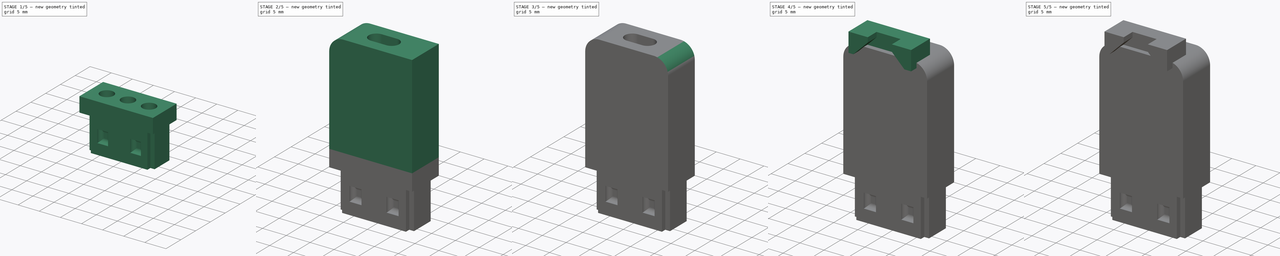
[diagram: build sequence overview — one tinted view per stage of 5, left to right]
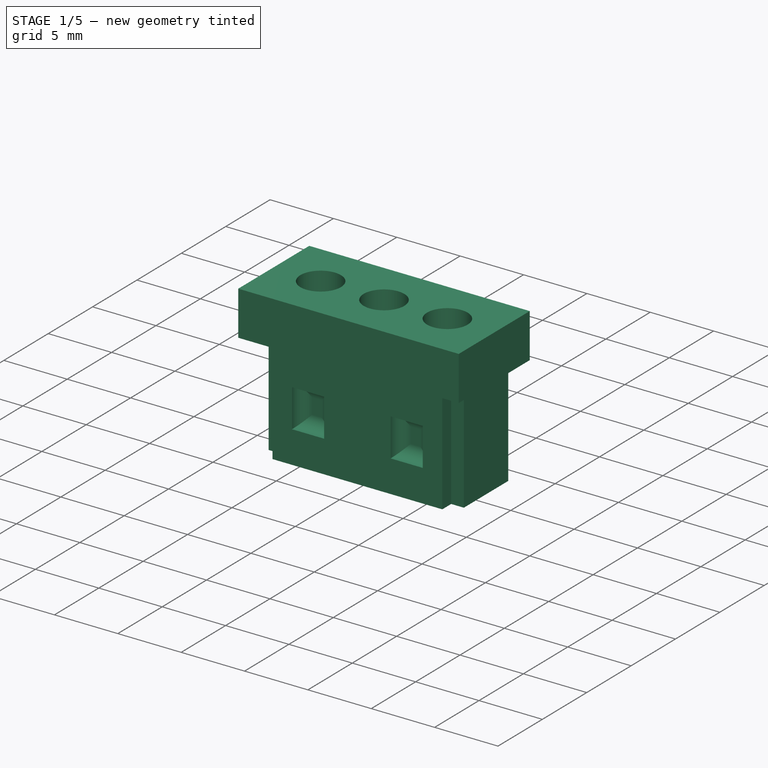
[diagram: stage 1 of 5 — iso view after this stage's code; geometry added in this stage tinted green]
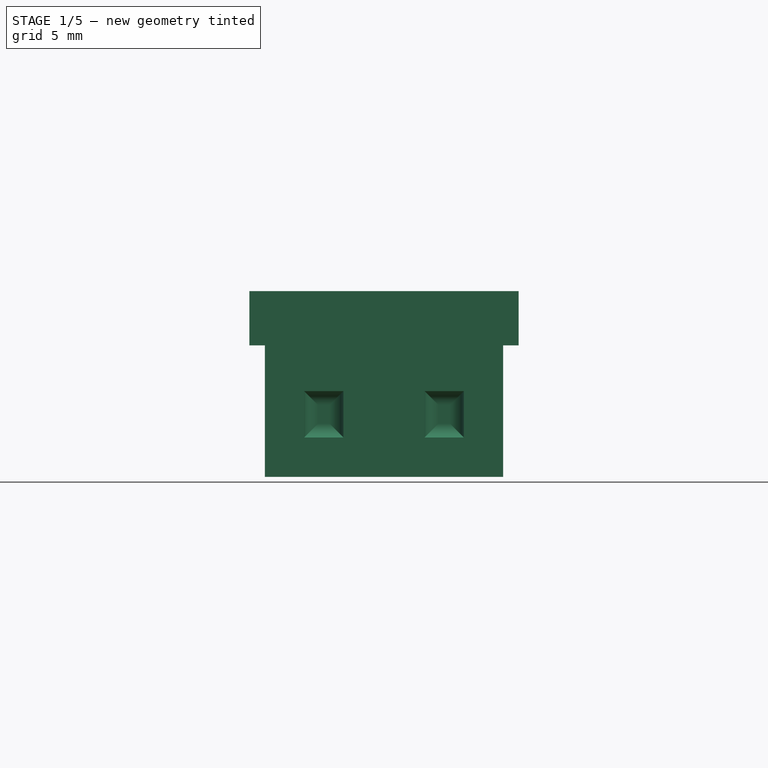
[diagram: stage 1 of 5 — front view after this stage's code; geometry added in this stage tinted green]
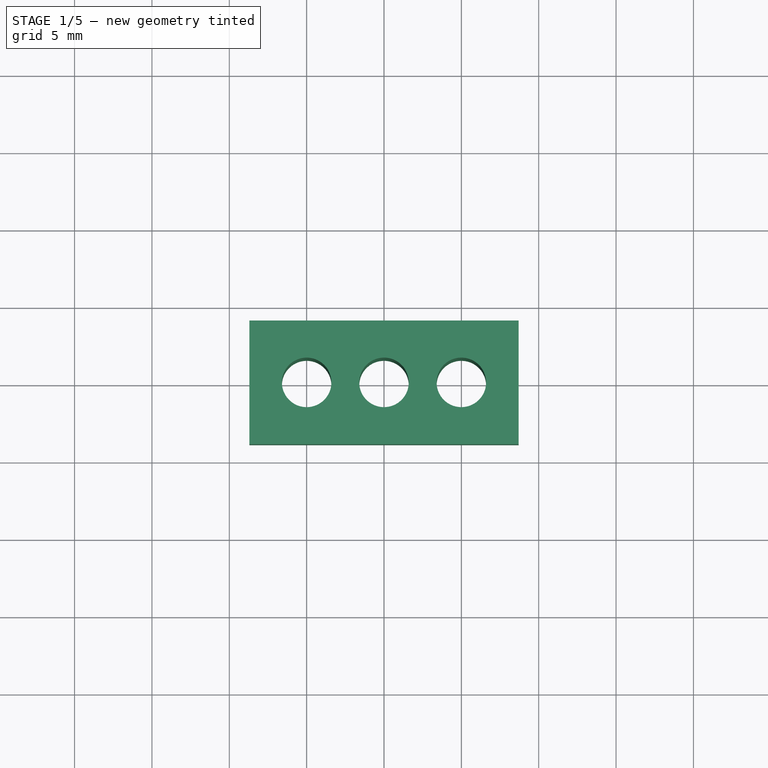
[diagram: stage 1 of 5 — top view after this stage's code; geometry added in this stage tinted green]
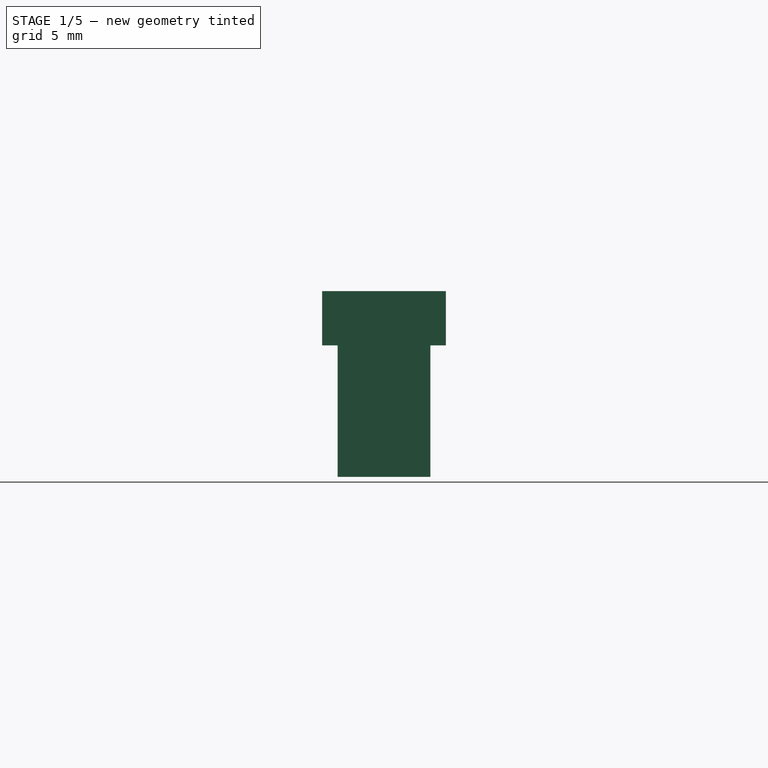
[diagram: stage 1 of 5 — right view after this stage's code; geometry added in this stage tinted green]
FCSTD DOCUMENT  (FreeCAD 0.21R33771 (Git))
Label: IbmPcJrPowerPlug
License: All rights reserved
LicenseURL: http://en.wikipedia.org/wiki/All_rights_reserved
objects: Sketcher::SketchObject×11, PartDesign::Pad×9, PartDesign::Fillet×9, PartDesign::Chamfer×4, PartDesign::Mirrored×3, PartDesign::Pocket×2, PartDesign::Body×2
note: 64 computed .brp shape members not serialized (recipe doc carries the construction recipe); baked Part::Feature solids carry a one-line shape summary decoded from their .brp

FEATURE [Sketcher::SketchObject] Sketch
  FullyConstrained = true
  MapMode = 5
  Support = -> [XY_Plane]
  sketch-geometry (11):
    g0: LineSegment StartX=-7.7 StartY=3 StartZ=0 EndX=7.7 EndY=3 EndZ=0
    g1: LineSegment StartX=7.7 StartY=3 StartZ=0 EndX=7.7 EndY=-2 EndZ=0
    g2: LineSegment StartX=7.7 StartY=-2 StartZ=0 EndX=6.7 EndY=-2 EndZ=0
    g3: LineSegment StartX=6.7 StartY=-2 StartZ=0 EndX=6.7 EndY=-3 EndZ=0
    g4: LineSegment StartX=6.7 StartY=-3 StartZ=0 EndX=-6.7 EndY=-3 EndZ=0
    g5: LineSegment StartX=-6.7 StartY=-3 StartZ=0 EndX=-6.7 EndY=-2 EndZ=0
    g6: LineSegment StartX=-6.7 StartY=-2 StartZ=0 EndX=-7.7 EndY=-2 EndZ=0
    g7: LineSegment StartX=-7.7 StartY=-2 StartZ=0 EndX=-7.7 EndY=3 EndZ=0
    g8: Circle CenterX=0 CenterY=0 CenterZ=0 NormalX=0 NormalY=0 NormalZ=1 AngleXU=0 Radius=1.6
    g9: Circle CenterX=-5 CenterY=0 CenterZ=0 NormalX=0 NormalY=0 NormalZ=1 AngleXU=0 Radius=1.6
    g10: Circle CenterX=5 CenterY=0 CenterZ=0 NormalX=0 NormalY=0 NormalZ=1 AngleXU=0 Radius=1.6
  constraints (32):
    c: Horizontal(g0)
    c: Coincident(g0,g1)
    c: Coincident(g1,g2)
    c: Coincident(g2,g3)
    c: Vertical(g3)
    c: Coincident(g3,g4)
    c: Horizontal(g4)
    c: Coincident(g4,g5)
    c: Coincident(g5,g6)
    c: Coincident(g6,g7)
    c: Coincident(g7,g0)
    c: Vertical(g7)
    c: Horizontal(g6)
    c: Vertical(g5)
    c: Horizontal(g2)
    c: Vertical(g1)
    c: DistanceX(g0,g0) = 15.4
    c: DistanceX(g4,g4) = 13.4
    c: Equal(g6,g2)
    c: DistanceY(g1,g1) = 5
    c: Equal(g5,g3)
    c: DistanceY(g5,g5) = 1
    c: DistanceX(g0,g-1) = 7.7
    c: DistanceY(g-1,g0) = 3
    c: Coincident(g8,g-1)
    c: Diameter(g8) = 3.2
    c: Horizontal(g9,g8)
    c: Equal(g9,g8)
    c: DistanceX(g9,g-1) = 5
    c: Horizontal(g10,g8)
    c: Equal(g8,g10)
    c: DistanceX(g-1,g10) = 5
FEATURE [PartDesign::Pad] Pad
  Direction = (0,0,1)
  Length = 8.5
  Length2 = 10
  Profile = -> Sketch
  ReferenceAxis = -> Sketch [N_Axis]
  Type = 0
  expr: Length = 8.5 mm
FEATURE [Sketcher::SketchObject] Sketch001
  ExternalGeometry = -> [Pad]
  FullyConstrained = true
  MapMode = 5
  Placement = pos=(0,3,0) rot=(0,0.707107,0.707107;3.14159rad)
  Support = -> [Pad]
  sketch-geometry (8):
    g0: LineSegment StartX=-5.16 StartY=5.54 StartZ=0 EndX=-2.62 EndY=5.54 EndZ=0
    g1: LineSegment StartX=-2.62 StartY=5.54 StartZ=0 EndX=-2.62 EndY=2.54 EndZ=0
    g2: LineSegment StartX=-2.62 StartY=2.54 StartZ=0 EndX=-5.16 EndY=2.54 EndZ=0
    g3: LineSegment StartX=-5.16 StartY=2.54 StartZ=0 EndX=-5.16 EndY=5.54 EndZ=0
    g4: LineSegment StartX=2.62 StartY=5.54 StartZ=0 EndX=5.16 EndY=5.54 EndZ=0
    g5: LineSegment StartX=5.16 StartY=5.54 StartZ=0 EndX=5.16 EndY=2.54 EndZ=0
    g6: LineSegment StartX=5.16 StartY=2.54 StartZ=0 EndX=2.62 EndY=2.54 EndZ=0
    g7: LineSegment StartX=2.62 StartY=2.54 StartZ=0 EndX=2.62 EndY=5.54 EndZ=0
  constraints (24):
    c: Coincident(g0,g1)
    c: Coincident(g1,g2)
    c: Coincident(g2,g3)
    c: Coincident(g3,g0)
    c: Horizontal(g0)
    c: Horizontal(g2)
    c: Vertical(g1)
    c: Vertical(g3)
    c: DistanceX(g0,g0) = 2.54
    c: DistanceY(g1,g1) = 3
    c: DistanceY(g-4,g1) = 2.54
    c: DistanceX(g-4,g2) = 2.54
    c: Coincident(g4,g5)
    c: Coincident(g5,g6)
    c: Coincident(g6,g7)
    c: Coincident(g7,g4)
    c: Horizontal(g4)
    c: Horizontal(g6)
    c: Vertical(g5)
    c: Vertical(g7)
    c: DistanceY(g-1,g6) = 2.54
    c: DistanceX(g4,g-3) = 2.54
    c: Equal(g0,g4)
    c: Equal(g5,g1)
FEATURE [PartDesign::Pocket] Pocket
  BaseFeature = -> Pad
  Direction = (0,-1,2e-16)
  Length = 1
  Length2 = 5
  Profile = -> Sketch001
  ReferenceAxis = -> Sketch001 [N_Axis]
  Type = 0
FEATURE [PartDesign::Mirrored] Mirrored
  BaseFeature = -> Pocket
  MirrorPlane = -> XZ_Plane
  Originals = -> [Pocket]
FEATURE [PartDesign::Fillet] Fillet
  Base = -> Mirrored [Face33,Face32,Face23,Face22]
  BaseFeature = -> Mirrored
  Radius = 0.9
  SupportTransform = false
  UseAllEdges = false
FEATURE [Sketcher::SketchObject] Sketch002
  ExternalGeometry = -> [Fillet]
  FullyConstrained = true
  MapMode = 5
  Placement = pos=(0,0,8.5) rot=(0,0,1;0rad)
  Support = -> [Fillet]
  sketch-geometry (7):
    g0: LineSegment StartX=-8.7 StartY=4 StartZ=0 EndX=8.7 EndY=4 EndZ=0
    g1: LineSegment StartX=8.7 StartY=4 StartZ=0 EndX=8.7 EndY=-4 EndZ=0
    g2: LineSegment StartX=8.7 StartY=-4 StartZ=0 EndX=-8.7 EndY=-4 EndZ=0
    g3: LineSegment StartX=-8.7 StartY=-4 StartZ=0 EndX=-8.7 EndY=4 EndZ=0
    g4: Circle CenterX=0 CenterY=0 CenterZ=0 NormalX=0 NormalY=0 NormalZ=1 AngleXU=0 Radius=1.6
    g5: Circle CenterX=-5 CenterY=0 CenterZ=0 NormalX=0 NormalY=0 NormalZ=1 AngleXU=0 Radius=1.6
    g6: Circle CenterX=5 CenterY=0 CenterZ=0 NormalX=0 NormalY=0 NormalZ=1 AngleXU=0 Radius=1.6
  constraints (20):
    c: Coincident(g0,g1)
    c: Coincident(g1,g2)
    c: Coincident(g2,g3)
    c: Coincident(g3,g0)
    c: Horizontal(g0)
    c: Horizontal(g2)
    c: Vertical(g1)
    c: Vertical(g3)
    c: DistanceX(g-6,g1) = 1
    c: DistanceX(g0,g-5) = 1
    c: DistanceY(g2,g-3) = 1
    c: DistanceY(g-6,g0) = 1
    c: Coincident(g4,g-1)
    c: Diameter(g4) = 3.2
    c: Horizontal(g4,g5)
    c: DistanceX(g5,g4) = 5
    c: Equal(g4,g5)
    c: DistanceX(g4,g6) = 5
    c: Horizontal(g4,g6)
    c: Equal(g4,g6)
FEATURE [PartDesign::Pad] Pad001
  BaseFeature = -> Fillet
  Direction = (0,0,1)
  Length = 3.5
  Length2 = 10
  Profile = -> Sketch002
  ReferenceAxis = -> Sketch002 [N_Axis]
  Type = 0
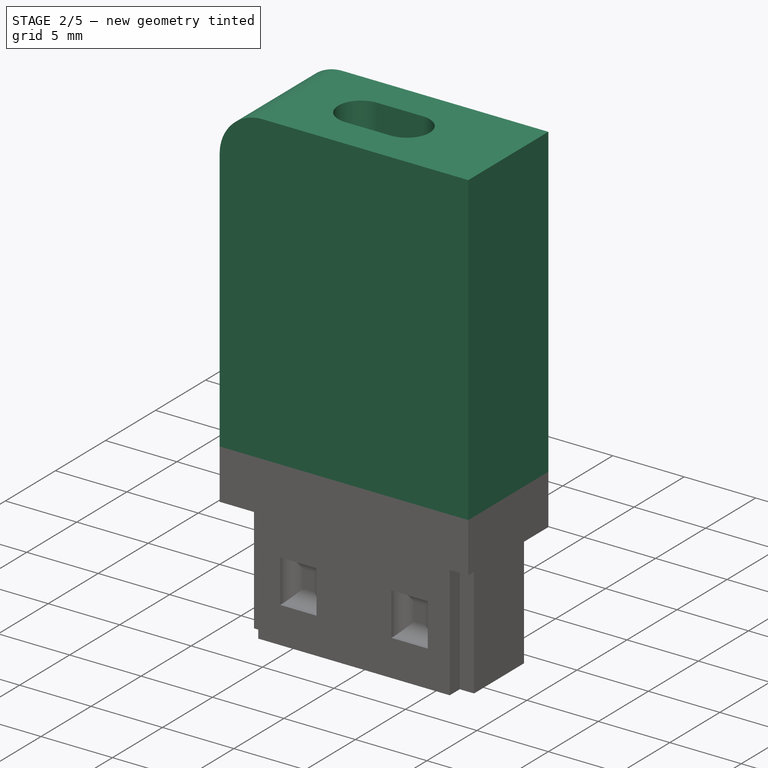
[diagram: stage 2 of 5 — iso view after this stage's code; geometry added in this stage tinted green]
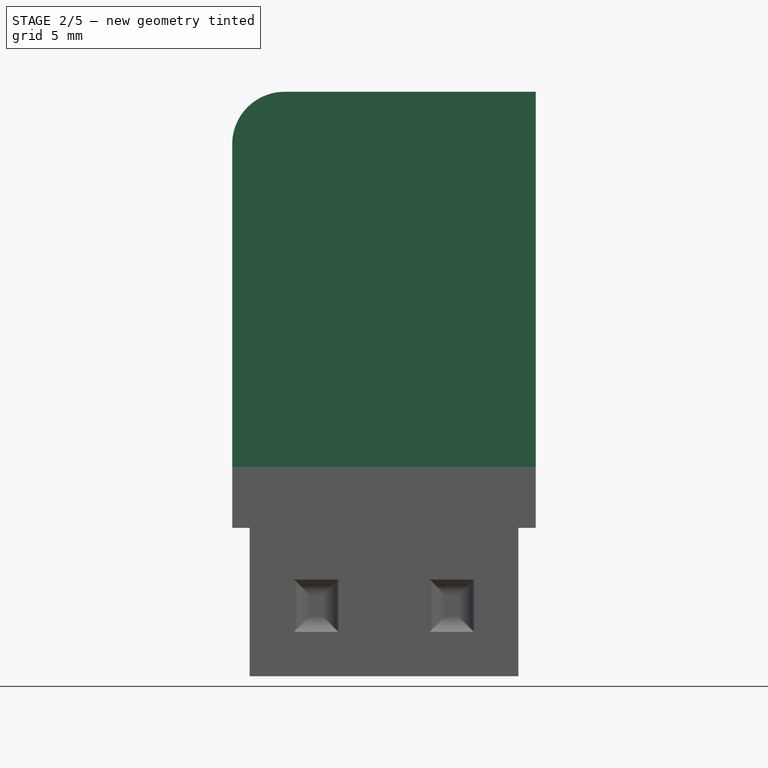
[diagram: stage 2 of 5 — front view after this stage's code; geometry added in this stage tinted green]
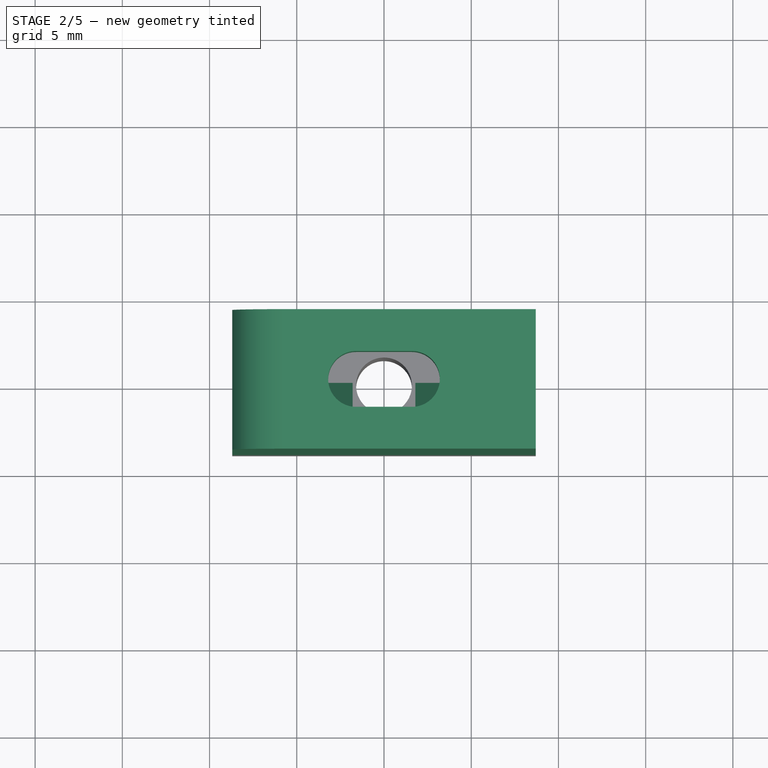
[diagram: stage 2 of 5 — top view after this stage's code; geometry added in this stage tinted green]
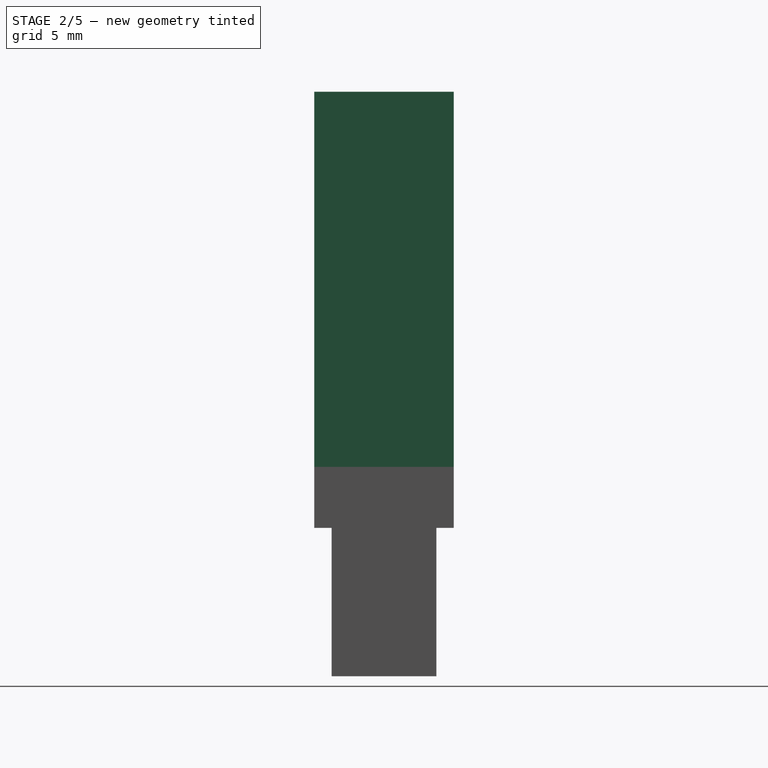
[diagram: stage 2 of 5 — right view after this stage's code; geometry added in this stage tinted green]
FEATURE [Sketcher::SketchObject] Sketch003
  ExternalGeometry = -> [Pad001]
  FullyConstrained = true
  MapMode = 5
  Placement = pos=(0,0,12) rot=(0,0,1;0rad)
  Support = -> [Pad001]
  sketch-geometry (16):
    g0: LineSegment StartX=-8.7 StartY=4 StartZ=0 EndX=-8.7 EndY=-4 EndZ=0
    g1: LineSegment StartX=8.7 StartY=-4 StartZ=0 EndX=8.7 EndY=4 EndZ=0
    g2: LineSegment StartX=-8.7 StartY=-4 StartZ=0 EndX=8.7 EndY=-4 EndZ=0
    g3: LineSegment StartX=-6.8 StartY=-1.6 StartZ=0 EndX=-3.2 EndY=-1.6 EndZ=0
    g4: LineSegment StartX=-6.8 StartY=-1.6 StartZ=0 EndX=-6.8 EndY=4 EndZ=0
    g5: LineSegment StartX=-8.7 StartY=4 StartZ=0 EndX=-6.8 EndY=4 EndZ=0
    g6: LineSegment StartX=-3.2 StartY=-1.6 StartZ=0 EndX=-3.2 EndY=7e-16 EndZ=0
    g7: LineSegment StartX=8.7 StartY=4 StartZ=0 EndX=6.8 EndY=4 EndZ=0
    g8: LineSegment StartX=6.8 StartY=4 StartZ=0 EndX=6.8 EndY=-1.6 EndZ=0
    g9: LineSegment StartX=3.2 StartY=-1.6 StartZ=0 EndX=6.8 EndY=-1.6 EndZ=0
    g10: LineSegment StartX=3.2 StartY=-1.6 StartZ=0 EndX=3.2 EndY=0 EndZ=0
    g11: LineSegment StartX=-3.2 StartY=7e-16 StartZ=0 EndX=-1.8 EndY=7e-16 EndZ=0
    g12: LineSegment StartX=-1.8 StartY=7e-16 StartZ=0 EndX=-1.8 EndY=-1.6 EndZ=0
    g13: LineSegment StartX=-1.8 StartY=-1.6 StartZ=0 EndX=1.8 EndY=-1.6 EndZ=0
    g14: LineSegment StartX=1.8 StartY=-1.6 StartZ=0 EndX=1.8 EndY=0 EndZ=0
    g15: LineSegment StartX=1.8 StartY=0 StartZ=0 EndX=3.2 EndY=0 EndZ=0
  constraints (44):
    c: Coincident(g0,g-4)
    c: Coincident(g0,g-5)
    c: Coincident(g1,g-6)
    c: Coincident(g1,g-6)
    c: Coincident(g2,g0)
    c: Coincident(g2,g1)
    c: Horizontal(g3)
    c: DistanceX(g3,g3) = 3.6
    c: Coincident(g4,g3)
    c: Vertical(g4)
    c: Coincident(g5,g0)
    c: Coincident(g5,g4)
    c: Horizontal(g5)
    c: DistanceX(g5,g5) = 1.9
    c: DistanceY(g4,g4) = 5.6
    c: Coincident(g6,g3)
    c: Vertical(g6)
    c: DistanceY(g6,g6) = 1.6
    c: Coincident(g7,g1)
    c: Horizontal(g7)
    c: Equal(g7,g5)
    c: Coincident(g8,g7)
    c: Vertical(g8)
    c: Horizontal(g9)
    c: Coincident(g8,g9)
    c: Equal(g8,g4)
    c: Equal(g9,g3)
    c: Coincident(g10,g9)
    c: PointOnObject(g10,g-1)
    c: Vertical(g10)
    c: Coincident(g11,g6)
    c: Horizontal(g11)
    c: Coincident(g12,g11)
    c: Vertical(g12)
    c: Coincident(g13,g12)
    c: Horizontal(g13)
    c: Equal(g13,g3)
    c: Equal(g12,g6)
    c: DistanceX(g11,g11) = 1.4
    c: Coincident(g14,g13)
    c: PointOnObject(g14,g-1)
    c: Vertical(g14)
    c: Coincident(g15,g14)
    c: Coincident(g15,g10)
FEATURE [PartDesign::Pad] Pad002
  BaseFeature = -> Pad001
  Direction = (0,0,1)
  Length = 10
  Length2 = 10
  Profile = -> Sketch003
  ReferenceAxis = -> Sketch003 [N_Axis]
  Type = 0
FEATURE [Sketcher::SketchObject] Sketch004
  ExternalGeometry = -> [Pad002]
  FullyConstrained = true
  MapMode = 5
  Placement = pos=(0,0,22) rot=(0,0,1;0rad)
  Support = -> [Pad002]
  sketch-geometry (8):
    g0: LineSegment StartX=-8.7 StartY=4 StartZ=0 EndX=-8.7 EndY=-4 EndZ=0
    g1: LineSegment StartX=8.7 StartY=-4 StartZ=0 EndX=-8.7 EndY=-4 EndZ=0
    g2: LineSegment StartX=8.7 StartY=4 StartZ=0 EndX=8.7 EndY=-4 EndZ=0
    g3: LineSegment StartX=-8.7 StartY=4 StartZ=0 EndX=-6.8 EndY=4 EndZ=0
    g4: LineSegment StartX=8.7 StartY=4 StartZ=0 EndX=6.8 EndY=4 EndZ=0
    g5: LineSegment StartX=-6.8 StartY=4 StartZ=0 EndX=-6.8 EndY=-1.6 EndZ=0
    g6: LineSegment StartX=6.8 StartY=4 StartZ=0 EndX=6.8 EndY=-1.6 EndZ=0
    g7: LineSegment StartX=-6.8 StartY=-1.6 StartZ=0 EndX=6.8 EndY=-1.6 EndZ=0
  constraints (18):
    c: Coincident(g0,g-3)
    c: Coincident(g0,g-4)
    c: Coincident(g1,g-6)
    c: Coincident(g1,g0)
    c: Coincident(g2,g-6)
    c: Coincident(g2,g1)
    c: Coincident(g3,g0)
    c: Coincident(g3,g-5)
    c: Coincident(g4,g2)
    c: Coincident(g4,g-5)
    c: Coincident(g5,g3)
    c: Vertical(g5)
    c: DistanceY(g5,g5) = 5.6
    c: Coincident(g6,g4)
    c: Vertical(g6)
    c: Equal(g6,g5)
    c: Coincident(g7,g5)
    c: Coincident(g7,g6)
FEATURE [PartDesign::Pad] Pad003
  BaseFeature = -> Pad002
  Direction = (0,0,1)
  Length = 8
  Length2 = 10
  Profile = -> Sketch004
  ReferenceAxis = -> Sketch004 [N_Axis]
  Type = 0
FEATURE [Sketcher::SketchObject] Sketch005
  ExternalGeometry = -> [Pad003]
  FullyConstrained = true
  MapMode = 5
  Placement = pos=(0,0,30) rot=(0,0,1;0rad)
  Support = -> [Pad003]
  sketch-geometry (8):
    g0: LineSegment StartX=-8.7 StartY=4 StartZ=0 EndX=8.7 EndY=4 EndZ=0
    g1: LineSegment StartX=8.7 StartY=4 StartZ=0 EndX=8.7 EndY=-4 EndZ=0
    g2: LineSegment StartX=8.7 StartY=-4 StartZ=0 EndX=-8.7 EndY=-4 EndZ=0
    g3: LineSegment StartX=-8.7 StartY=-4 StartZ=0 EndX=-8.7 EndY=4 EndZ=0
    g4: ArcOfCircle CenterX=-1.6 CenterY=0 CenterZ=0 NormalX=0 NormalY=0 NormalZ=1 AngleXU=0 Radius=1.6 StartAngle=1.5708 EndAngle=4.71239
    g5: ArcOfCircle CenterX=1.6 CenterY=0 CenterZ=0 NormalX=0 NormalY=0 NormalZ=1 AngleXU=0 Radius=1.6 StartAngle=4.71239 EndAngle=7.85398
    g6: LineSegment StartX=-1.6 StartY=-1.6 StartZ=0 EndX=1.6 EndY=-1.6 EndZ=0
    g7: LineSegment StartX=1.6 StartY=1.6 StartZ=0 EndX=-1.6 EndY=1.6 EndZ=0
  constraints (20):
    c: Coincident(g0,g1)
    c: Coincident(g1,g2)
    c: Coincident(g2,g3)
    c: Coincident(g3,g0)
    c: Horizontal(g0)
    c: Horizontal(g2)
    c: Vertical(g1)
    c: Vertical(g3)
    c: Coincident(g0,g-3)
    c: Coincident(g1,g-4)
    c: Tangent(g4,g6) = -1.5708
    c: Tangent(g6,g5) = -1.5708
    c: Tangent(g5,g7) = -1.5708
    c: Tangent(g7,g4) = -1.5708
    c: Equal(g4,g5)
    c: PointOnObject(g4,g-1)
    c: PointOnObject(g5,g-1)
    c: DistanceX(g-1,g5) = 1.6
    c: DistanceY(g4,g-1) = 1.6
    c: DistanceX(g4,g-1) = 1.6
FEATURE [PartDesign::Pad] Pad004
  BaseFeature = -> Pad003
  Direction = (0,0,1)
  Length = 3.5
  Length2 = 10
  Profile = -> Sketch005
  ReferenceAxis = -> Sketch005 [N_Axis]
  Type = 0
FEATURE [PartDesign::Chamfer] Chamfer
  Angle = 45
  Base = -> Pad004 [Edge182]
  BaseFeature = -> Pad004
  ChamferType = 0
  FlipDirection = false
  Size = 1.5
  Size2 = 1
  SupportTransform = false
  UseAllEdges = false
FEATURE [PartDesign::Chamfer] Chamfer001
  Angle = 45
  Base = -> Chamfer [Edge48]
  BaseFeature = -> Chamfer
  ChamferType = 0
  FlipDirection = false
  Size = 1.5
  Size2 = 1
  SupportTransform = false
  UseAllEdges = false
FEATURE [PartDesign::Fillet] Fillet001
  Base = -> Chamfer001 [Edge156]
  BaseFeature = -> Chamfer001
  Radius = 3
  SupportTransform = false
  UseAllEdges = false
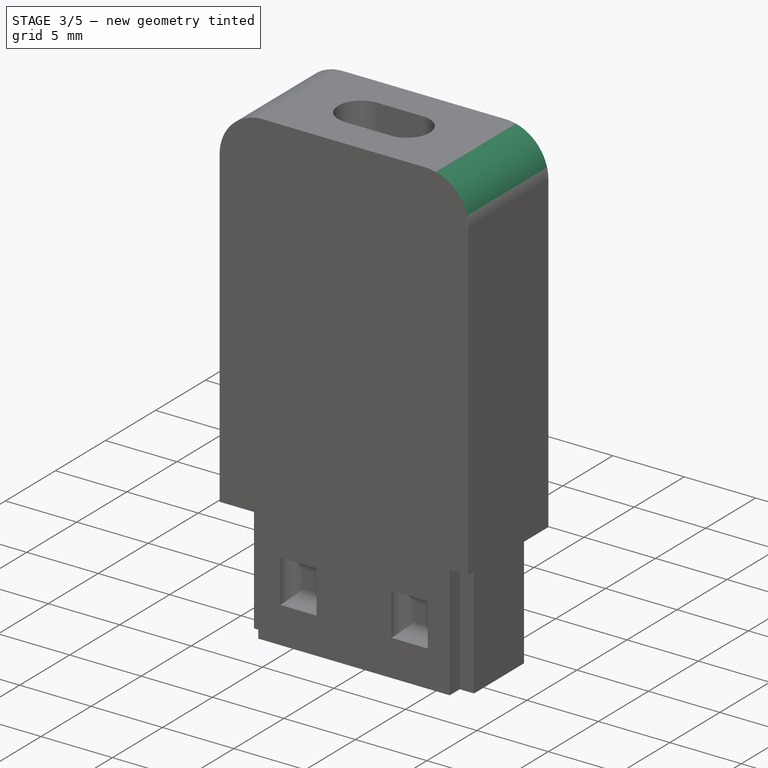
[diagram: stage 3 of 5 — iso view after this stage's code; geometry added in this stage tinted green]
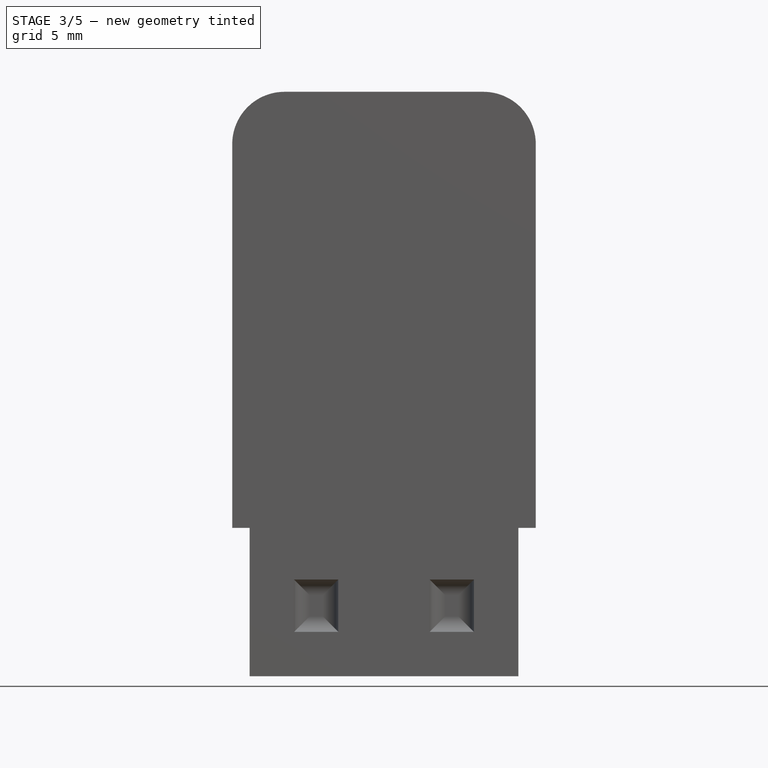
[diagram: stage 3 of 5 — front view after this stage's code; geometry added in this stage tinted green]
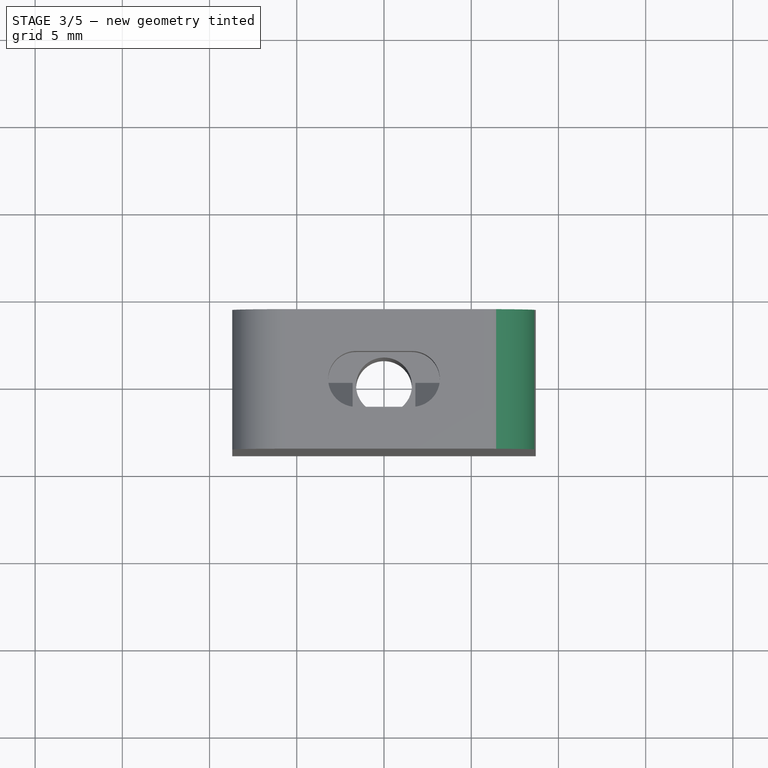
[diagram: stage 3 of 5 — top view after this stage's code; geometry added in this stage tinted green]
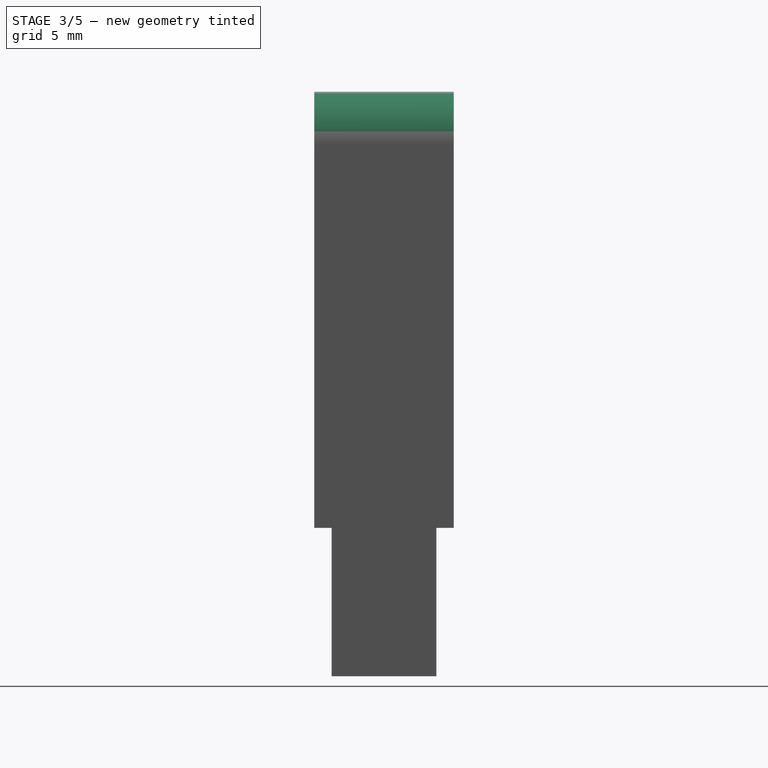
[diagram: stage 3 of 5 — right view after this stage's code; geometry added in this stage tinted green]
FEATURE [PartDesign::Fillet] Fillet002
  Base = -> Fillet001 [Edge16]
  BaseFeature = -> Fillet001
  Radius = 3
  SupportTransform = false
  UseAllEdges = false
FEATURE [PartDesign::Body] Body001  label="PcJrPowerPlugTop"
  Group = -> [Sketch006,Pad005,Sketch007,Pad006,Chamfer002,Chamfer003,Sketch008,Pad007,Sketch009,Pocket001,Mirrored001,Fillet003,Fillet004]
  Origin = -> Origin001
  Placement = pos=(0,32,-8) rot=(0,0,1;0rad)
  Tip = -> Fillet004
FEATURE [Sketcher::SketchObject] Sketch010
  ExternalGeometry = -> [Fillet002]
  FullyConstrained = true
  MapMode = 5
  Placement = pos=(6.8,0,0) rot=(0.57735,-0.57735,-0.57735;2.0944rad)
  Support = -> [Fillet002]
  sketch-geometry (4):
    g0: LineSegment StartX=-3.2 StartY=24 StartZ=0 EndX=-1.8 EndY=24 EndZ=0
    g1: LineSegment StartX=-1.8 StartY=24 StartZ=0 EndX=-1.8 EndY=16 EndZ=0
    g2: LineSegment StartX=-1.8 StartY=16 StartZ=0 EndX=-3.2 EndY=16 EndZ=0
    g3: LineSegment StartX=-3.2 StartY=16 StartZ=0 EndX=-3.2 EndY=24 EndZ=0
  constraints (12):
    c: Coincident(g0,g1)
    c: Coincident(g1,g2)
    c: Coincident(g2,g3)
    c: Coincident(g3,g0)
    c: Horizontal(g0)
    c: Horizontal(g2)
    c: Vertical(g1)
    c: Vertical(g3)
    c: DistanceX(g-4,g2) = 0.8
    c: DistanceX(g0,g0) = 1.4
    c: DistanceY(g1,g1) = 8
    c: DistanceY(g-4,g2) = 4
FEATURE [PartDesign::Pad] Pad008
  BaseFeature = -> Fillet002
  Direction = (-1,0,0)
  Length = 0.8
  Length2 = 10
  Profile = -> Sketch010
  ReferenceAxis = -> Sketch010 [N_Axis]
  Type = 0
FEATURE [PartDesign::Fillet] Fillet005
  Base = -> Pad008 [Edge78]
  BaseFeature = -> Pad008
  Radius = 0.6
  SupportTransform = false
  UseAllEdges = false
FEATURE [PartDesign::Fillet] Fillet006
  Base = -> Fillet005 [Edge25]
  BaseFeature = -> Fillet005
  Radius = 0.6
  SupportTransform = false
  UseAllEdges = false
FEATURE [PartDesign::Mirrored] Mirrored002
  BaseFeature = -> Fillet006
  MirrorPlane = -> YZ_Plane
  Originals = -> [Pad008]
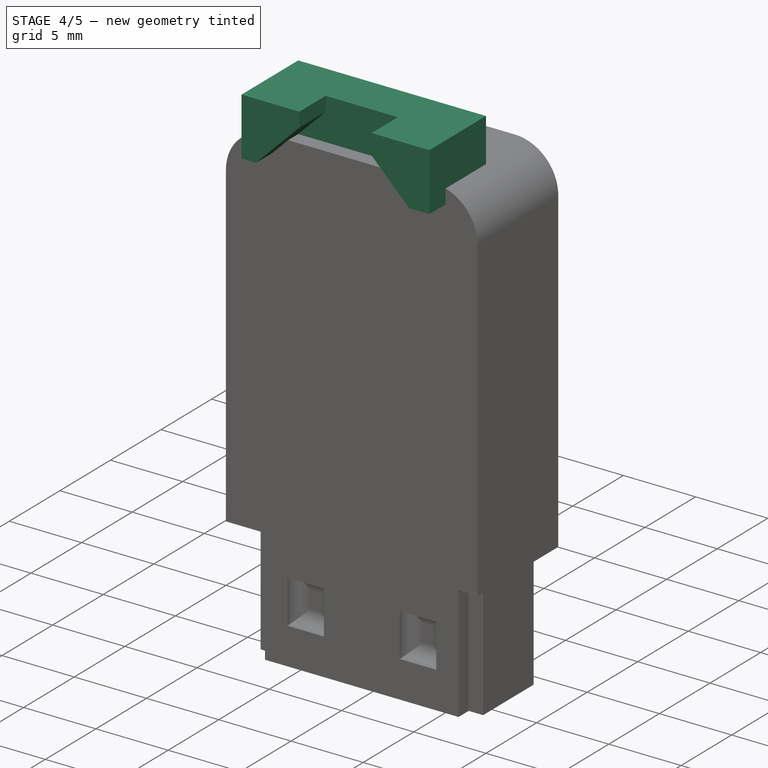
[diagram: stage 4 of 5 — iso view after this stage's code; geometry added in this stage tinted green]
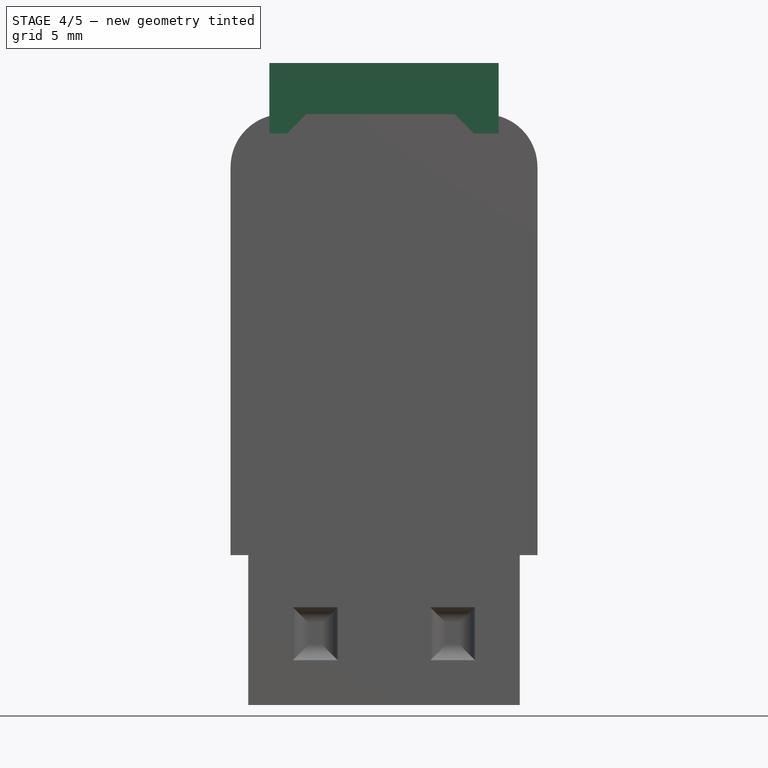
[diagram: stage 4 of 5 — front view after this stage's code; geometry added in this stage tinted green]
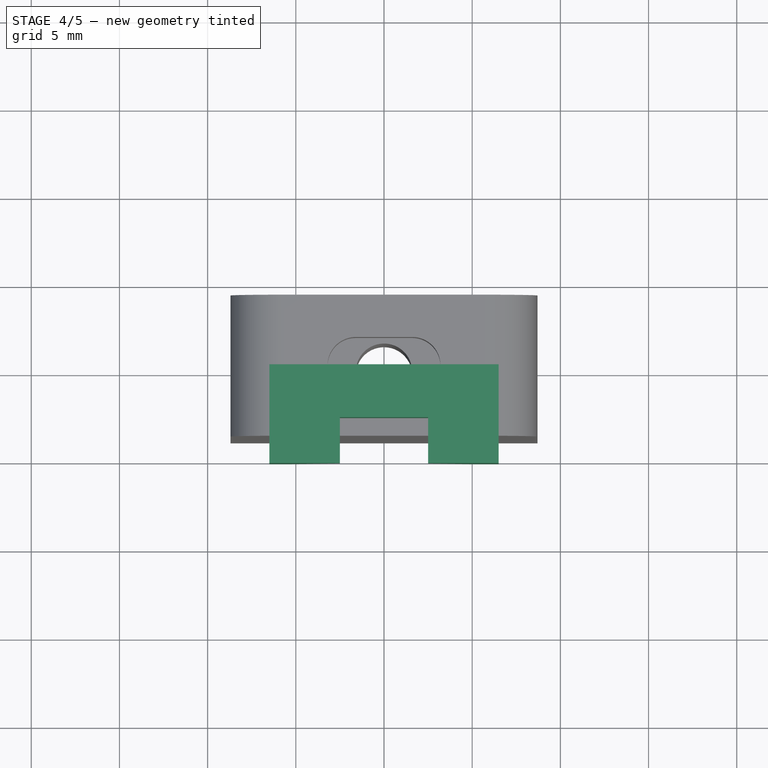
[diagram: stage 4 of 5 — top view after this stage's code; geometry added in this stage tinted green]
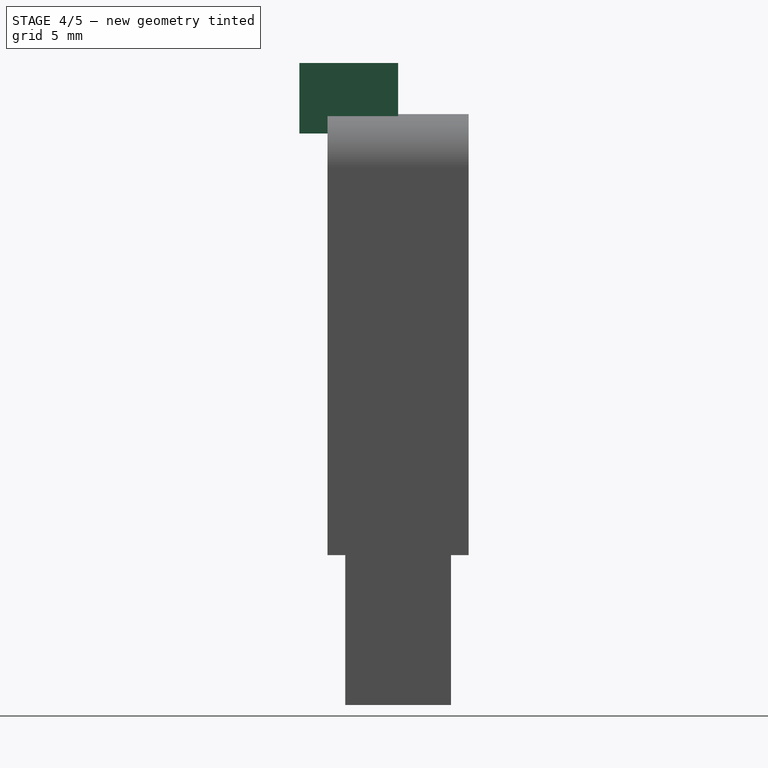
[diagram: stage 4 of 5 — right view after this stage's code; geometry added in this stage tinted green]
FEATURE [Sketcher::SketchObject] Sketch006
  AttachmentOffset = pos=(0,19,0) rot=(0,0,1;0rad)
  FullyConstrained = true
  MapMode = 5
  Placement = pos=(0,-4.2e-15,19) rot=(1,0,0;1.5708rad)
  Support = -> [XZ_Plane001]
  sketch-geometry (4):
    g0: LineSegment StartX=-6.5 StartY=0 StartZ=0 EndX=6.5 EndY=0 EndZ=0
    g1: LineSegment StartX=6.5 StartY=0 StartZ=0 EndX=6.5 EndY=17.4 EndZ=0
    g2: LineSegment StartX=6.5 StartY=17.4 StartZ=0 EndX=-6.5 EndY=17.4 EndZ=0
    g3: LineSegment StartX=-6.5 StartY=17.4 StartZ=0 EndX=-6.5 EndY=0 EndZ=0
  constraints (12):
    c: Coincident(g0,g1)
    c: Coincident(g1,g2)
    c: Coincident(g2,g3)
    c: Coincident(g3,g0)
    c: Horizontal(g0)
    c: Horizontal(g2)
    c: Vertical(g1)
    c: Vertical(g3)
    c: PointOnObject(g0,g-1)
    c: DistanceX(g0,g0) = 13
    c: DistanceY(g3,g3) = 17.4
    c: DistanceX(g0,g-1) = 6.5
FEATURE [PartDesign::Pad] Pad005
  Direction = (0,-1,2e-16)
  Length = 3
  Length2 = 10
  Placement = pos=(0,0,0) rot=(1,0,0;1.5708rad)
  Profile = -> Sketch006
  ReferenceAxis = -> Sketch006 [N_Axis]
  Type = 0
FEATURE [Sketcher::SketchObject] Sketch007
  ExternalGeometry = -> [Pad005]
  FullyConstrained = true
  MapMode = 5
  Placement = pos=(0,-3,1.3e-15) rot=(1,0,0;1.5708rad)
  Support = -> [Pad005]
  sketch-geometry (8):
    g0: LineSegment StartX=-6.5 StartY=36.4 StartZ=0 EndX=-2.5 EndY=36.4 EndZ=0
    g1: LineSegment StartX=-2.5 StartY=36.4 StartZ=0 EndX=-2.5 EndY=32.4 EndZ=0
    g2: LineSegment StartX=-2.5 StartY=32.4 StartZ=0 EndX=-6.5 EndY=32.4 EndZ=0
    g3: LineSegment StartX=-6.5 StartY=32.4 StartZ=0 EndX=-6.5 EndY=36.4 EndZ=0
    g4: LineSegment StartX=6.5 StartY=36.4 StartZ=0 EndX=2.5 EndY=36.4 EndZ=0
    g5: LineSegment StartX=2.5 StartY=36.4 StartZ=0 EndX=2.5 EndY=32.4 EndZ=0
    g6: LineSegment StartX=2.5 StartY=32.4 StartZ=0 EndX=6.5 EndY=32.4 EndZ=0
    g7: LineSegment StartX=6.5 StartY=32.4 StartZ=0 EndX=6.5 EndY=36.4 EndZ=0
  constraints (22):
    c: Coincident(g0,g1)
    c: Coincident(g1,g2)
    c: Coincident(g2,g3)
    c: Coincident(g3,g0)
    c: Horizontal(g0)
    c: Horizontal(g2)
    c: Vertical(g1)
    c: Vertical(g3)
    c: Coincident(g0,g-5)
    c: DistanceY(g1,g1) = 4
    c: DistanceX(g2,g2) = 4
    c: Coincident(g4,g5)
    c: Coincident(g5,g6)
    c: Coincident(g6,g7)
    c: Coincident(g7,g4)
    c: Horizontal(g4)
    c: Horizontal(g6)
    c: Vertical(g5)
    c: Vertical(g7)
    c: Coincident(g4,g-3)
    c: Equal(g4,g0)
    c: Equal(g7,g3)
FEATURE [PartDesign::Pad] Pad006
  BaseFeature = -> Pad005
  Direction = (0,-1,2e-16)
  Length = 2.6
  Length2 = 10
  Placement = pos=(0,0,0) rot=(1,0,0;1.5708rad)
  Profile = -> Sketch007
  ReferenceAxis = -> Sketch007 [N_Axis]
  Type = 0
FEATURE [PartDesign::Chamfer] Chamfer002
  Angle = 45
  Base = -> Pad006 [Edge32]
  BaseFeature = -> Pad006
  ChamferType = 0
  FlipDirection = false
  Placement = pos=(0,0,0) rot=(1,0,0;1.5708rad)
  Size = 3
  Size2 = 1
  SupportTransform = false
  UseAllEdges = false
FEATURE [PartDesign::Chamfer] Chamfer003
  Angle = 45
  Base = -> Chamfer002 [Edge23]
  BaseFeature = -> Chamfer002
  ChamferType = 0
  FlipDirection = false
  Placement = pos=(0,0,0) rot=(1,0,0;1.5708rad)
  Size = 2.6
  Size2 = 1
  SupportTransform = false
  UseAllEdges = false
FEATURE [PartDesign::Fillet] Fillet007
  Base = -> Mirrored002 [Edge146]
  BaseFeature = -> Mirrored002
  Radius = 0.6
  SupportTransform = false
  UseAllEdges = false
FEATURE [PartDesign::Fillet] Fillet008
  Base = -> Fillet007 [Edge25]
  BaseFeature = -> Fillet007
  Radius = 0.6
  SupportTransform = false
  UseAllEdges = false
FEATURE [PartDesign::Body] Body  label="PcJrPowerPlugBottom"
  Group = -> [Sketch,Pad,Sketch001,Pocket,Mirrored,Fillet,Sketch002,Pad001,Sketch003,Pad002,Sketch004,Pad003,Sketch005,Pad004,Chamfer,Chamfer001,Fillet001,Fillet002,Sketch010,Pad008,Fillet005,Fillet006,Mirrored002,Fillet007,Fillet008]
  Origin = -> Origin
  Tip = -> Fillet008
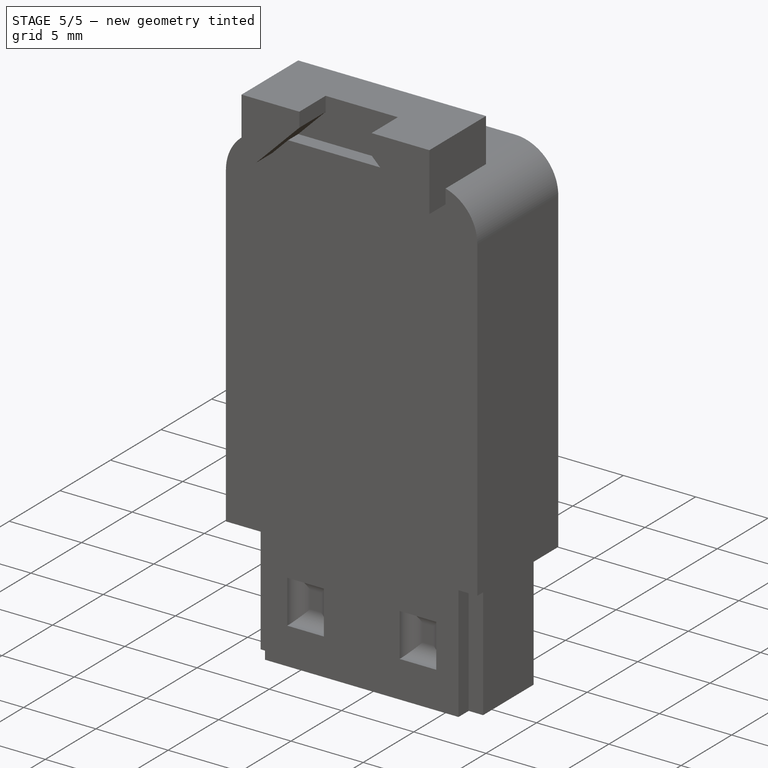
[diagram: stage 5 of 5 — iso view after this stage's code; geometry added in this stage tinted green]
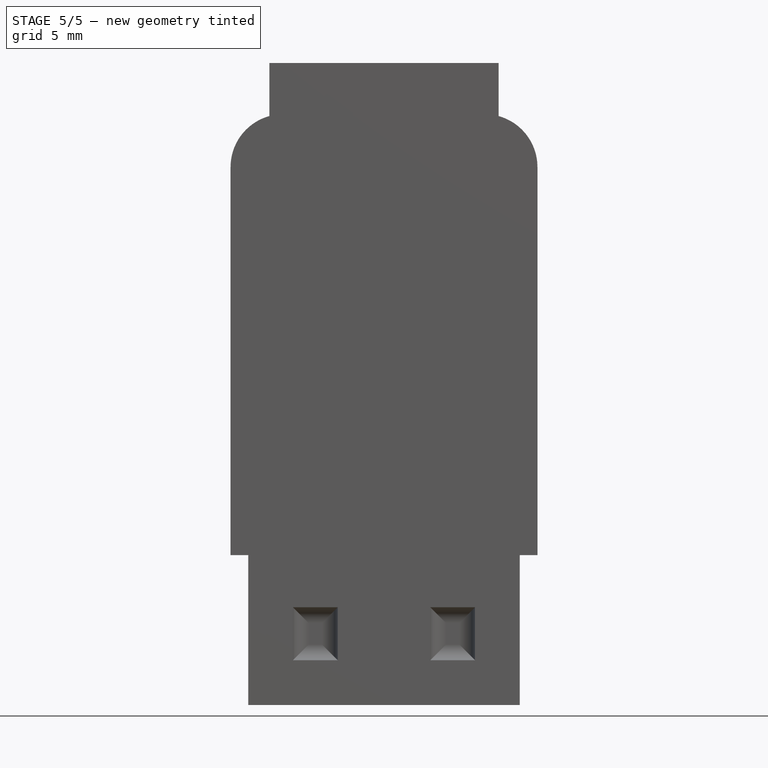
[diagram: stage 5 of 5 — front view after this stage's code; geometry added in this stage tinted green]
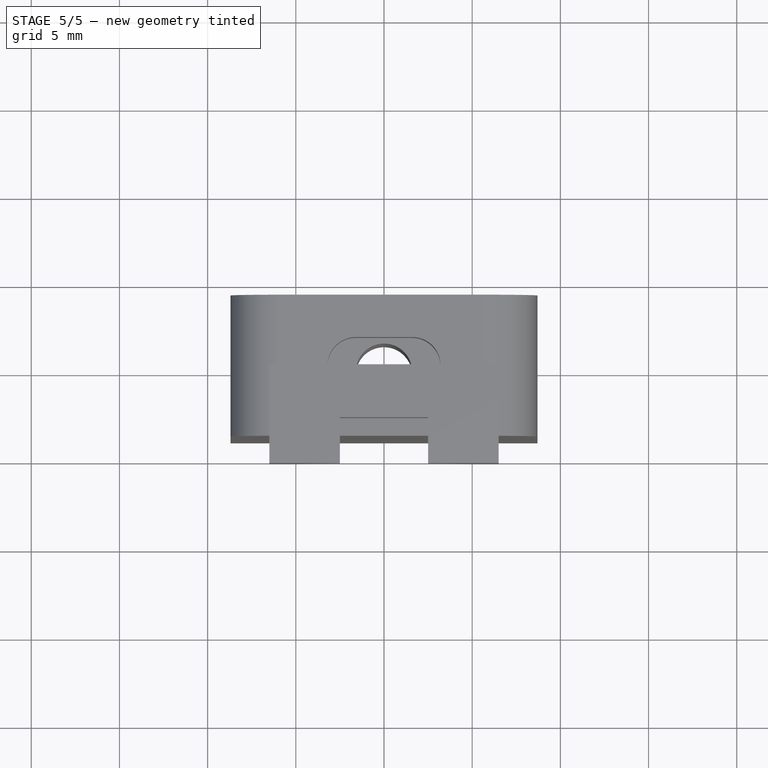
[diagram: stage 5 of 5 — top view after this stage's code; geometry added in this stage tinted green]
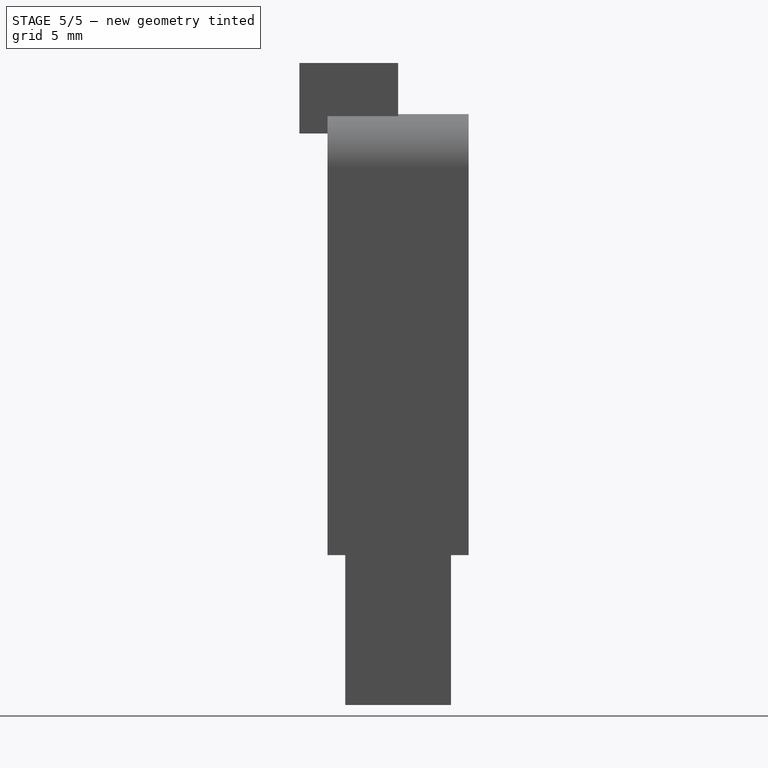
[diagram: stage 5 of 5 — right view after this stage's code; geometry added in this stage tinted green]
FEATURE [Sketcher::SketchObject] Sketch008
  ExternalGeometry = -> [Chamfer003]
  FullyConstrained = true
  MapMode = 5
  Placement = pos=(0,-3,1.3e-15) rot=(1,0,0;1.5708rad)
  Support = -> [Chamfer003]
  sketch-geometry (4):
    g0: LineSegment StartX=-6.5 StartY=19 StartZ=0 EndX=6.5 EndY=19 EndZ=0
    g1: LineSegment StartX=6.5 StartY=19 StartZ=0 EndX=6.5 EndY=22 EndZ=0
    g2: LineSegment StartX=6.5 StartY=22 StartZ=0 EndX=-6.5 EndY=22 EndZ=0
    g3: LineSegment StartX=-6.5 StartY=22 StartZ=0 EndX=-6.5 EndY=19 EndZ=0
  constraints (10):
    c: Coincident(g0,g1)
    c: Coincident(g1,g2)
    c: Coincident(g2,g3)
    c: Coincident(g3,g0)
    c: Horizontal(g2)
    c: Vertical(g1)
    c: Vertical(g3)
    c: Coincident(g0,g-4)
    c: DistanceY(g3,g3) = 3
    c: Coincident(g-5,g0)
FEATURE [PartDesign::Pad] Pad007
  BaseFeature = -> Chamfer003
  Direction = (0,-1,2e-16)
  Length = 1
  Length2 = 10
  Placement = pos=(0,0,0) rot=(1,0,0;1.5708rad)
  Profile = -> Sketch008
  ReferenceAxis = -> Sketch008 [N_Axis]
  Type = 0
FEATURE [Sketcher::SketchObject] Sketch009
  ExternalGeometry = -> [Pad007]
  FullyConstrained = true
  MapMode = 5
  Placement = pos=(6.5,0,0) rot=(0.707107,0,0.707107;3.14159rad)
  Support = -> [Pad007]
  sketch-geometry (4):
    g0: LineSegment StartX=22 StartY=2.2 StartZ=0 EndX=32 EndY=2.2 EndZ=0
    g1: LineSegment StartX=32 StartY=2.2 StartZ=0 EndX=32 EndY=0.8 EndZ=0
    g2: LineSegment StartX=32 StartY=0.8 StartZ=0 EndX=22 EndY=0.8 EndZ=0
    g3: LineSegment StartX=22 StartY=0.8 StartZ=0 EndX=22 EndY=2.2 EndZ=0
  constraints (12):
    c: Coincident(g0,g1)
    c: Coincident(g1,g2)
    c: Coincident(g2,g3)
    c: Coincident(g3,g0)
    c: Horizontal(g0)
    c: Horizontal(g2)
    c: Vertical(g1)
    c: Vertical(g3)
    c: DistanceY(g-8,g2) = 0.8
    c: DistanceX(g-8,g2) = 3
    c: DistanceY(g1,g1) = 1.4
    c: DistanceX(g0,g0) = 10
FEATURE [PartDesign::Pocket] Pocket001
  BaseFeature = -> Pad007
  Direction = (-1,0,2e-16)
  Length = 1
  Length2 = 5
  Placement = pos=(0,0,0) rot=(1,0,0;1.5708rad)
  Profile = -> Sketch009
  ReferenceAxis = -> Sketch009 [N_Axis]
  Type = 0
FEATURE [PartDesign::Mirrored] Mirrored001
  BaseFeature = -> Pocket001
  MirrorPlane = -> YZ_Plane001
  Originals = -> [Pocket001]
  Placement = pos=(0,0,0) rot=(1,0,0;1.5708rad)
FEATURE [PartDesign::Fillet] Fillet003
  Base = -> Mirrored001 [Face33]
  BaseFeature = -> Mirrored001
  Placement = pos=(0,0,0) rot=(1,0,0;1.5708rad)
  Radius = 0.5
  SupportTransform = false
  UseAllEdges = false
FEATURE [PartDesign::Fillet] Fillet004
  Base = -> Fillet003 [Face37]
  BaseFeature = -> Fillet003
  Placement = pos=(0,0,0) rot=(1,0,0;1.5708rad)
  Radius = 0.5
  SupportTransform = false
  UseAllEdges = false
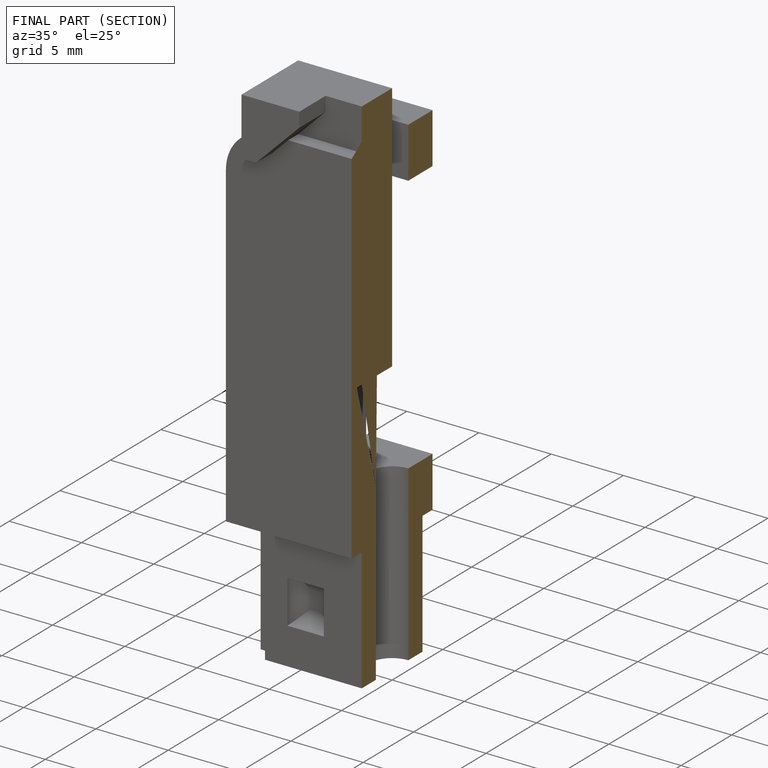
[diagram: finished part — half-section view (interior)]
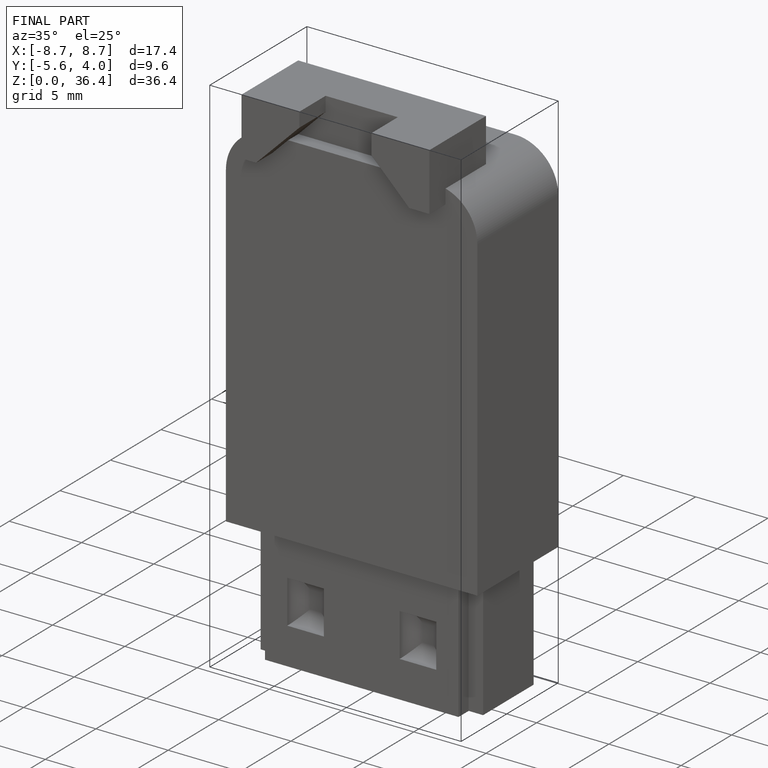
[diagram: finished part — iso view with bounding-box wireframe]
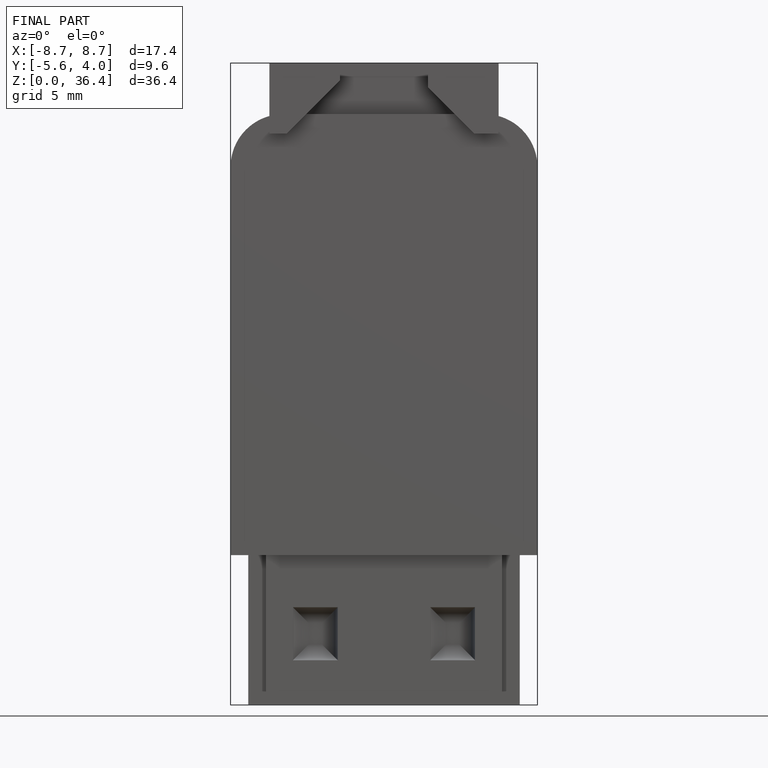
[diagram: finished part — front view with bounding-box wireframe]
